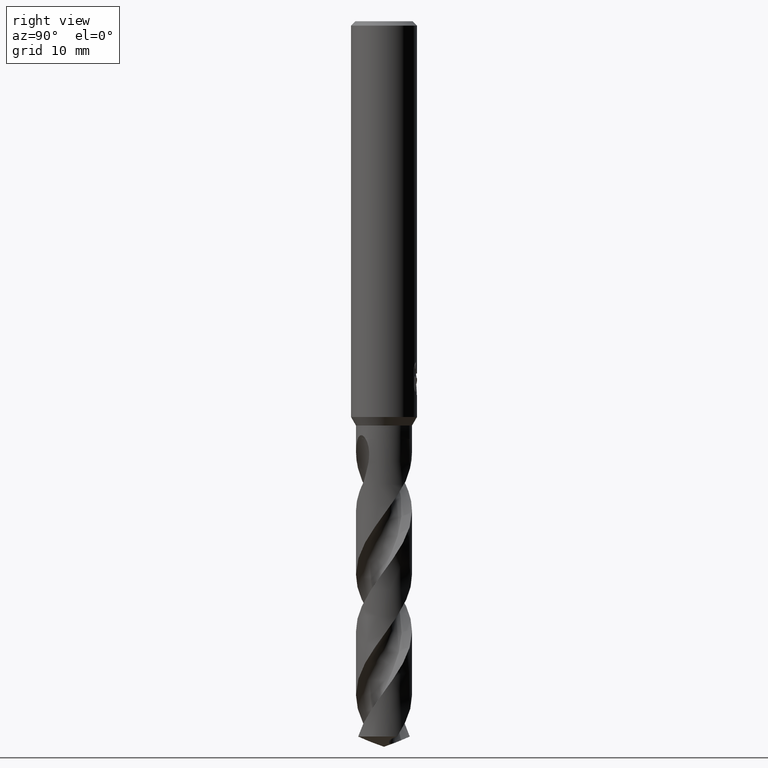
[diagram: clean part render]
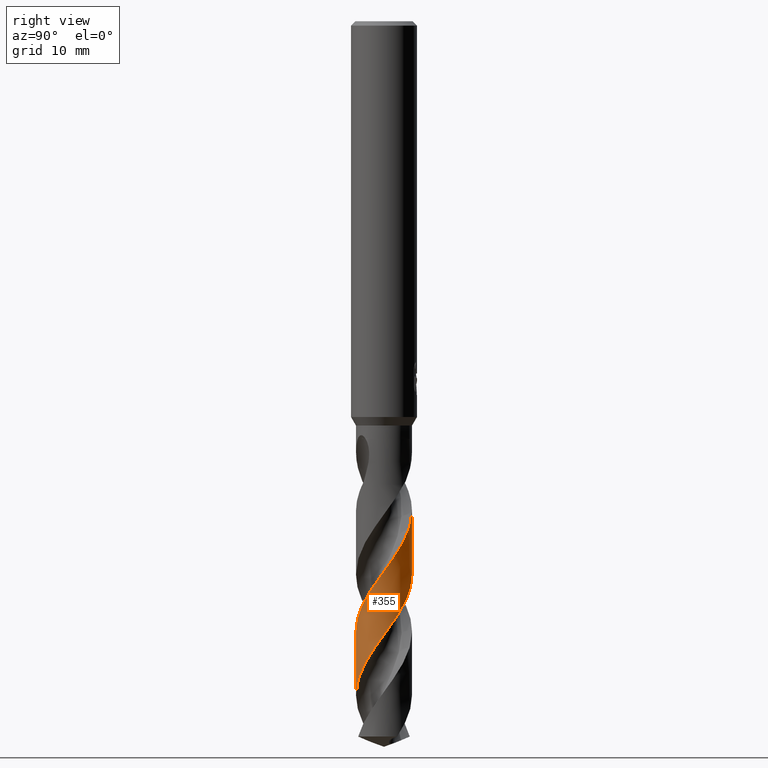
[diagram: same view with one face highlighted and labeled with its STEP entity id]
A machine part, right view. The second image highlights one B-rep face of the part: STEP entity #355.
In plain terms, the highlighted conical surface has half-angle 0 deg.
Its self-contained STEP definition (entity closure, byte-faithful):
#269=EDGE_CURVE('',#511,#531,#760,.T.);
#355=ADVANCED_FACE('',(#854),#855,.T.);
#361=EDGE_CURVE('',#511,#485,#861,.T.);
#403=VERTEX_POINT('',#910);
#439=EDGE_CURVE('',#403,#531,#948,.T.);
#485=VERTEX_POINT('',#998);
#511=VERTEX_POINT('',#1024);
#531=VERTEX_POINT('',#1046);
#723=EDGE_CURVE('',#403,#485,#1257,.T.);
#760=LINE('',#1288,#1289);
#854=FACE_OUTER_BOUND('',#2594,.T.);
#855=CONICAL_SURFACE('',#2595,2.54995,3.6938703604974E-006);
#861=B_SPLINE_CURVE_WITH_KNOTS('',3,(#2692,#2693,#2694,#2695,#2696,#2697,#2698,#2699,#2700,#2701,#2702,#2703,#2704,#2705,#2706,#2707,#2708,#2709,#2710,#2711,#2712,#2713,#2714,#2715,#2716,#2717,#2718,#2719,#2720,#2721,#2722,#2723,#2724,#2725,#2726,#2727,#2728,#2729,#2730,#2731,#2732,#2733,#2734,#2735,#2736,#2737,#2738,#2739,#2740,#2741,#2742,#2743,#2744,#2745,#2746,#2747,#2748,#2749,#2750,#2751,#2752,#2753,#2754,#2755,#2756,#2757,#2758,#2759,#2760,#2761,#2762,#2763,#2764,#2765,#2766,#2767,#2768,#2769,#2770,#2771,#2772,#2773,#2774,#2775,#2776,#2777,#2778,#2779,#2780,#2781,#2782,#2783),.UNSPECIFIED.,.F.,.F.,(4,2,2,2,2,2,2,2,2,2,2,2,2,2,2,2,2,2,2,2,2,2,2,2,2,2,2,2,2,2,2,2,2,2,2,2,2,2,2,2,2,2,2,2,2,4),(0.0,0.112800987693246,0.189332770349452,0.26669306414109,0.521928952150843,0.617981461177497,0.681587780178432,0.742909892075467,0.827642327643437,0.922896394616909,0.948256476099843,1.28742599590481,1.50723645601527,1.72434400446815,1.95258565555803,2.55882098851267,3.1544701386302,4.67218787072503,4.71613880577405,5.42517611464853,5.77723962375493,6.72997278068951,8.15885723951831,8.86966463164733,9.5776134045962,10.4981173923902,11.2152590646798,11.3202776453244,12.8658345770722,13.380541284696,14.8650843486738,15.0928766735549,16.6750908745567,17.1568216058061,18.6445636424028,18.8658256002692,20.4866655105165,20.7146435022412,22.2943556356154,22.7774363460983,24.2632115008534,24.4834163983339,26.1079905633559,26.4424814520502,27.6266933553116,28.8219099300584),.UNSPECIFIED.);
#910=CARTESIAN_POINT('',(-3.84394961872605E-015,-2.54998604599356,-61.2942645932158));
#948=B_SPLINE_CURVE_WITH_KNOTS('',3,(#3277,#3278,#3279,#3280,#3281,#3282,#3283,#3284,#3285,#3286,#3287,#3288,#3289,#3290,#3291,#3292,#3293,#3294,#3295,#3296,#3297,#3298,#3299,#3300,#3301,#3302,#3303,#3304,#3305,#3306,#3307,#3308,#3309,#3310,#3311,#3312,#3313,#3314,#3315,#3316,#3317,#3318,#3319,#3320,#3321,#3322,#3323,#3324,#3325,#3326,#3327,#3328,#3329,#3330,#3331,#3332,#3333,#3334,#3335,#3336,#3337,#3338,#3339,#3340,#3341,#3342,#3343,#3344,#3345,#3346,#3347,#3348,#3349,#3350,#3351,#3352,#3353,#3354,#3355,#3356,#3357,#3358,#3359,#3360,#3361,#3362),.UNSPECIFIED.,.F.,.F.,(4,2,2,2,2,2,2,2,2,2,2,2,2,2,2,2,2,2,2,2,2,2,2,2,2,2,2,2,2,2,2,2,2,2,2,2,2,2,2,2,2,2,4),(0.0,0.708341602315633,0.745354688200383,2.20868046409056,2.89285285606434,4.17978675190689,4.59125738094158,5.91144174928599,6.63504517655889,7.50214414971066,8.13386709198113,8.18535100094151,9.64283848777459,10.2393792749426,11.0920500131254,11.5333703362865,12.2816403904368,13.6821955925578,13.7332371413768,15.179990228832,15.7731452026742,16.6236279120914,17.0735099294114,17.8052459909179,18.5054915455352,19.9885407400108,20.6894370401919,21.3154174236301,22.1678159716106,22.5156287071623,23.0571509194279,25.499689609649,25.8019852434485,26.256859210237,26.7643922736913,27.1051937397403,27.4250253838798,27.6263273786623,27.7058076121835,27.7982187100312,27.9641050959177,28.1792937099632,28.3776958514326),.UNSPECIFIED.);
#998=CARTESIAN_POINT('',(2.26860393591309E-013,-2.54996469917166,-55.5152794618447));
#1024=CARTESIAN_POINT('',(-3.82520225535139E-013,2.54992419348605,-44.5496305192164));
#1046=CARTESIAN_POINT('',(-1.39261826665389E-014,2.5499455383361,-50.328081837779));
#1257=LINE('',#5177,#5178);
#1288=CARTESIAN_POINT('',(-3.18834868752122E-016,2.54995,-51.5359379513106));
#1289=VECTOR('',#5217,1.0);
#2594=EDGE_LOOP('',(#5312,#5313,#5314,#5315));
#2595=AXIS2_PLACEMENT_3D('',#5316,#5317,#5318);
#2692=CARTESIAN_POINT('',(-1.77238658809862,1.83322353206436,-41.8606));
#2693=CARTESIAN_POINT('',(-1.75715502662711,1.84794978196327,-41.8916631913579));
#2694=CARTESIAN_POINT('',(-1.74169664883046,1.86252882649492,-41.922687804189));
#2695=CARTESIAN_POINT('',(-1.71528602902655,1.88681452765369,-41.9746864005262));
#2696=CARTESIAN_POINT('',(-1.70449844485085,1.8965663399012,-41.9956551769255));
#2697=CARTESIAN_POINT('',(-1.68253091793457,1.9160829790141,-42.0377742461096));
#2698=CARTESIAN_POINT('',(-1.6713691745389,1.92582800346438,-42.0588834940554));
#2699=CARTESIAN_POINT('',(-1.62275158308509,1.9675267356306,-42.1495360325029));
#2700=CARTESIAN_POINT('',(-1.58448769963045,1.99850103432359,-42.2176190264733));
#2701=CARTESIAN_POINT('',(-1.5293127277487,2.04049829287648,-42.3117970257963));
#2702=CARTESIAN_POINT('',(-1.51405569331539,2.0518459238094,-42.3374507917192));
#2703=CARTESIAN_POINT('',(-1.4883760118751,2.07049976079212,-42.3800712702503));
#2704=CARTESIAN_POINT('',(-1.47807525449818,2.07786605502114,-42.397022142935));
#2705=CARTESIAN_POINT('',(-1.45769861025118,2.09220884143894,-42.430305257843));
#2706=CARTESIAN_POINT('',(-1.44763717832061,2.09918330783959,-42.4466227676747));
#2707=CARTESIAN_POINT('',(-1.42352923991712,2.11563837925455,-42.4854874189889));
#2708=CARTESIAN_POINT('',(-1.40944566530356,2.12504699822035,-42.508005603724));
#2709=CARTESIAN_POINT('',(-1.37933061019754,2.14473435929471,-42.5558781111915));
#2710=CARTESIAN_POINT('',(-1.36330095189831,2.15495872383249,-42.5811952549917));
#2711=CARTESIAN_POINT('',(-1.34289483816398,2.16765677788349,-42.6133239933595));
#2712=CARTESIAN_POINT('',(-1.33863924930028,2.17028743407427,-42.6200200865094));
#2713=CARTESIAN_POINT('',(-1.27673139878675,2.20830360688199,-42.7174202288303));
#2714=CARTESIAN_POINT('',(-1.21815056464275,2.24111984101955,-42.8092147272944));
#2715=CARTESIAN_POINT('',(-1.12045858883321,2.29096398026588,-42.960115295281));
#2716=CARTESIAN_POINT('',(-1.08158795552068,2.30956819469769,-43.0196167261728));
#2717=CARTESIAN_POINT('',(-1.00349526346895,2.34454514515311,-43.1377425881658));
#2718=CARTESIAN_POINT('',(-0.964207424834067,2.36097653088092,-43.1964845562783));
#2719=CARTESIAN_POINT('',(-0.882690147445782,2.39268840025771,-43.3167468825109));
#2720=CARTESIAN_POINT('',(-0.840639093009305,2.40778519999716,-43.3778389597187));
#2721=CARTESIAN_POINT('',(-0.684868630286934,2.45911516310556,-43.6018435372923));
#2722=CARTESIAN_POINT('',(-0.569246391967033,2.48842249692214,-43.7638114275623));
#2723=CARTESIAN_POINT('',(-0.336828274889075,2.5302864545139,-44.0865041702941));
#2724=CARTESIAN_POINT('',(-0.220558860332089,2.54304255438227,-44.2468889489162));
#2725=CARTESIAN_POINT('',(0.192921814564404,2.55992597553261,-44.8146995910369));
#2726=CARTESIAN_POINT('',(0.489833898555408,2.52005917878731,-45.2173025907779));
#2727=CARTESIAN_POINT('',(0.781537928820186,2.42722198376911,-45.6365796141047));
#2728=CARTESIAN_POINT('',(0.789734236586711,2.42456762148691,-45.6483799978421));
#2729=CARTESIAN_POINT('',(0.92992453778802,2.37838090075855,-45.8505479330746));
#2730=CARTESIAN_POINT('',(1.05820099933306,2.32415495165254,-46.0405826185204));
#2731=CARTESIAN_POINT('',(1.24265512421942,2.22771729924607,-46.3253704400895));
#2732=CARTESIAN_POINT('',(1.30250541335167,2.19326064638787,-46.4197521548013));
#2733=CARTESIAN_POINT('',(1.51883431070945,2.05674140333622,-46.7701154763031));
#2734=CARTESIAN_POINT('',(1.66543785531467,1.93995353377816,-47.0256432364579));
#2735=CARTESIAN_POINT('',(1.99678819006712,1.61046791505491,-47.6650115130957));
#2736=CARTESIAN_POINT('',(2.16152973260956,1.38144501704338,-48.0455713272319));
#2737=CARTESIAN_POINT('',(2.34743448043975,1.00555851184106,-48.6203381277687));
#2738=CARTESIAN_POINT('',(2.39889977676179,0.875749083242066,-48.8108875299069));
#2739=CARTESIAN_POINT('',(2.47995959493312,0.609350429230094,-49.1916956742985));
#2740=CARTESIAN_POINT('',(2.50945286182512,0.473415588396909,-49.3810528074834));
#2741=CARTESIAN_POINT('',(2.55150635827195,0.156872530720871,-49.8184389967694));
#2742=CARTESIAN_POINT('',(2.55622010772526,-0.0241559011656032,-50.0654396494221));
#2743=CARTESIAN_POINT('',(2.53048670703743,-0.34447945812411,-50.5052153519442));
#2744=CARTESIAN_POINT('',(2.50762380866348,-0.483600381513505,-50.6972170261242));
#2745=CARTESIAN_POINT('',(2.46837477873936,-0.640143960836402,-50.9179440349129));
#2746=CARTESIAN_POINT('',(2.4631208351618,-0.660071437924707,-50.9461341589438));
#2747=CARTESIAN_POINT('',(2.37676003089924,-0.972229913642161,-51.3894434189122));
#2748=CARTESIAN_POINT('',(2.24429497725322,-1.24802464254054,-51.802563057248));
#2749=CARTESIAN_POINT('',(2.0071698240305,-1.57599252123576,-52.3558646949553));
#2750=CARTESIAN_POINT('',(1.94315608651471,-1.65426841989885,-52.4938945662643));
#2751=CARTESIAN_POINT('',(1.67728575005458,-1.94262956574846,-53.0312913062015));
#2752=CARTESIAN_POINT('',(1.44445609098318,-2.12152968374307,-53.4275910072428));
#2753=CARTESIAN_POINT('',(1.14667340842621,-2.27803251286587,-53.8875546489806));
#2754=CARTESIAN_POINT('',(1.10653615199116,-2.29779645822568,-53.9487094618539));
#2755=CARTESIAN_POINT('',(0.783692560666904,-2.44635098778922,-54.4351918517393));
#2756=CARTESIAN_POINT('',(0.479846923843472,-2.52364308324773,-54.8580432564531));
#2757=CARTESIAN_POINT('',(0.0750580291734802,-2.55061761702661,-55.4126896810726));
#2758=CARTESIAN_POINT('',(-0.0196233446092499,-2.55164199497897,-55.5420212704073));
#2759=CARTESIAN_POINT('',(-0.405825956985389,-2.53434753401846,-56.0717459812721));
#2760=CARTESIAN_POINT('',(-0.693402373619292,-2.47124442682279,-56.4689752565297));
#2761=CARTESIAN_POINT('',(-1.00439254898438,-2.34423414648466,-56.9283088953738));
#2762=CARTESIAN_POINT('',(-1.04420827271536,-2.32677154652363,-56.9877510836984));
#2763=CARTESIAN_POINT('',(-1.37176478564797,-2.17301359135874,-57.4831693039979));
#2764=CARTESIAN_POINT('',(-1.63234830124939,-1.98479160798729,-57.9161853402864));
#2765=CARTESIAN_POINT('',(-1.88233941874796,-1.72080875184623,-58.4132873107143));
#2766=CARTESIAN_POINT('',(-1.91228840082851,-1.68746446180307,-58.4745503597088));
#2767=CARTESIAN_POINT('',(-2.14264120082039,-1.41699090481956,-58.960874012314));
#2768=CARTESIAN_POINT('',(-2.29925253213112,-1.14561310355228,-59.3834799741324));
#2769=CARTESIAN_POINT('',(-2.43496825761625,-0.76312931656906,-59.938353707509));
#2770=CARTESIAN_POINT('',(-2.4616941334589,-0.671920185378062,-60.0681717454833));
#2771=CARTESIAN_POINT('',(-2.54960636767631,-0.295200789004756,-60.5982409827345));
#2772=CARTESIAN_POINT('',(-2.56668736938745,-0.00138079486259574,-60.9953217472241));
#2773=CARTESIAN_POINT('',(-2.52863666531793,0.332123056919176,-61.4542743187523));
#2774=CARTESIAN_POINT('',(-2.52263161001213,0.375016682521567,-61.5134867634412));
#2775=CARTESIAN_POINT('',(-2.46321081158312,0.732854961300559,-62.010101542126));
#2776=CARTESIAN_POINT('',(-2.35206029221698,1.03562212383164,-62.4446063083281));
#2777=CARTESIAN_POINT('',(-2.15397128954074,1.3664562829912,-62.9718978281086));
#2778=CARTESIAN_POINT('',(-2.11799444811077,1.4215794295799,-63.0618832469597));
#2779=CARTESIAN_POINT('',(-1.94522347803872,1.66517353783052,-63.4709106220507));
#2780=CARTESIAN_POINT('',(-1.78500415179579,1.83592441864692,-63.7887878881136));
#2781=CARTESIAN_POINT('',(-1.42070076141683,2.13060909944261,-64.4292615016959));
#2782=CARTESIAN_POINT('',(-1.21831665909281,2.25240051372047,-64.7497060980878));
#2783=CARTESIAN_POINT('',(-1.00246377886125,2.34468897128622,-65.0718759026212));
#3277=CARTESIAN_POINT('',(-2.25080379143291,-1.19849167392654,-65.0718759026212));
#3278=CARTESIAN_POINT('',(-2.18510297014613,-1.32187831773242,-64.8815895483828));
#3279=CARTESIAN_POINT('',(-2.10970277576798,-1.43902904554262,-64.6918701428737));
#3280=CARTESIAN_POINT('',(-2.02123229989125,-1.55472227291493,-64.4905403742505));
#3281=CARTESIAN_POINT('',(-2.01679081666905,-1.56047984732925,-64.4804895226848));
#3282=CARTESIAN_POINT('',(-1.8343505294425,-1.79487157162534,-64.0701373150177));
#3283=CARTESIAN_POINT('',(-1.61846355525164,-1.99193864680611,-63.6790411214308));
#3284=CARTESIAN_POINT('',(-1.25842010531978,-2.22201986512964,-63.0944556802455));
#3285=CARTESIAN_POINT('',(-1.13825927218761,-2.28588837555523,-62.9071227726554));
#3286=CARTESIAN_POINT('',(-0.779067779590851,-2.44147900121185,-62.3705743745927));
#3287=CARTESIAN_POINT('',(-0.530785052116859,-2.50717086312352,-62.0261866168001));
#3288=CARTESIAN_POINT('',(-0.195805431492565,-2.54376864582025,-61.564044867196));
#3289=CARTESIAN_POINT('',(-0.114474147333359,-2.54871475598237,-61.4516402357787));
#3290=CARTESIAN_POINT('',(0.227896472767353,-2.55316035063651,-60.9808882993341));
#3291=CARTESIAN_POINT('',(0.488083497333805,-2.51647485583169,-60.6285099632571));
#3292=CARTESIAN_POINT('',(0.87576938213406,-2.39916635875573,-60.0742857555063));
#3293=CARTESIAN_POINT('',(1.00900183675831,-2.34623287161168,-59.8768026514452));
#3294=CARTESIAN_POINT('',(1.29066242489317,-2.20590315338705,-59.4454482299027));
#3295=CARTESIAN_POINT('',(1.43627125461818,-2.11402400352217,-59.2122324277177));
#3296=CARTESIAN_POINT('',(1.67038686401345,-1.93077492355165,-58.8065407466412));
#3297=CARTESIAN_POINT('',(1.76290254233631,-1.84663131231763,-58.63602003391));
#3298=CARTESIAN_POINT('',(1.85562562039151,-1.74903737111469,-58.4504224447158));
#3299=CARTESIAN_POINT('',(1.86259684028373,-1.74161214872564,-58.4363835380792));
#3300=CARTESIAN_POINT('',(2.06671014513539,-1.52155260306626,-58.0228913732095));
#3301=CARTESIAN_POINT('',(2.22639029321903,-1.27675468690815,-57.6322580022302));
#3302=CARTESIAN_POINT('',(2.38866205137972,-0.9004487242537,-57.0713070830414));
#3303=CARTESIAN_POINT('',(2.4279748226148,-0.788261011532186,-56.9074764263027));
#3304=CARTESIAN_POINT('',(2.50412626004407,-0.510331590740688,-56.5118447851245));
#3305=CARTESIAN_POINT('',(2.53259611629711,-0.342448524978212,-56.2809376938767));
#3306=CARTESIAN_POINT('',(2.55008179947536,-0.0846979045504142,-55.9285891431603));
#3307=CARTESIAN_POINT('',(2.55147674145802,0.00333472607913374,-55.8085936276316));
#3308=CARTESIAN_POINT('',(2.54301122122916,0.240009376401789,-55.484181004054));
#3309=CARTESIAN_POINT('',(2.52467551827187,0.388014849409902,-55.2787812543403));
#3310=CARTESIAN_POINT('',(2.43505021329,0.806661093196625,-54.692682566376));
#3311=CARTESIAN_POINT('',(2.33236557613172,1.06744939846259,-54.3181298715346));
#3312=CARTESIAN_POINT('',(2.18499856729007,1.31460015781218,-53.9213848531759));
#3313=CARTESIAN_POINT('',(2.17973805636793,1.32330506339226,-53.9073669001962));
#3314=CARTESIAN_POINT('',(2.0229562274645,1.57923223453986,-53.4939103845013));
#3315=CARTESIAN_POINT('',(1.83035616785413,1.79906057200144,-53.1032903762835));
#3316=CARTESIAN_POINT('',(1.5116856443538,2.05700810551191,-52.5420717237663));
#3317=CARTESIAN_POINT('',(1.41410550383006,2.12524992873737,-52.3779633322934));
#3318=CARTESIAN_POINT('',(1.166124659065,2.27407938850555,-51.980929532214));
#3319=CARTESIAN_POINT('',(1.01135249542506,2.34705705230857,-51.7489251968907));
#3320=CARTESIAN_POINT('',(0.764766898674813,2.43424765560917,-51.3922070483517));
#3321=CARTESIAN_POINT('',(0.678040844160028,2.45980458611549,-51.2689824342829));
#3322=CARTESIAN_POINT('',(0.447536681417132,2.51465188179756,-50.9443104394202));
#3323=CARTESIAN_POINT('',(0.302180456838972,2.53623752541866,-50.7419258793903));
#3324=CARTESIAN_POINT('',(0.0152099117338023,2.55377315024994,-50.3483672548008));
#3325=CARTESIAN_POINT('',(-0.1257216527468,2.55073736482625,-50.1569876745545));
#3326=CARTESIAN_POINT('',(-0.562586717931691,2.50494153375254,-49.5577366808622));
#3327=CARTESIAN_POINT('',(-0.851434994536774,2.42204166179561,-49.1488295452442));
#3328=CARTESIAN_POINT('',(-1.24621051780205,2.22913275041139,-48.5493852331588));
#3329=CARTESIAN_POINT('',(-1.36739536164702,2.15689553585337,-48.3579398197636));
#3330=CARTESIAN_POINT('',(-1.58408883090951,2.00215410005524,-47.9932745079302));
#3331=CARTESIAN_POINT('',(-1.68055444573877,1.92187974899194,-47.8201981118849));
#3332=CARTESIAN_POINT('',(-1.89355472007323,1.71631811442131,-47.4139664140191));
#3333=CARTESIAN_POINT('',(-2.0043838933027,1.58555148014887,-47.1816195262402));
#3334=CARTESIAN_POINT('',(-2.14105164645958,1.38670251021474,-46.8526704714192));
#3335=CARTESIAN_POINT('',(-2.17823345459781,1.32752593955717,-46.7574255849381));
#3336=CARTESIAN_POINT('',(-2.26690079275941,1.1726546894111,-46.5134384023233));
#3337=CARTESIAN_POINT('',(-2.31469515333938,1.07519985310533,-46.3642504300947));
#3338=CARTESIAN_POINT('',(-2.54284239104172,0.523966011383729,-45.54563390245));
#3339=CARTESIAN_POINT('',(-2.59540318828178,0.0300543956457526,-44.8985251666046));
#3340=CARTESIAN_POINT('',(-2.49990180178217,-0.506156932026548,-44.147679626819));
#3341=CARTESIAN_POINT('',(-2.48734963444535,-0.564627729322264,-44.0647200370539));
#3342=CARTESIAN_POINT('',(-2.45059563121024,-0.710529138318172,-43.8574726750054));
#3343=CARTESIAN_POINT('',(-2.4237269657843,-0.797526273876131,-43.7332750994972));
#3344=CARTESIAN_POINT('',(-2.35652755141249,-0.979454751128763,-43.4717633655581));
#3345=CARTESIAN_POINT('',(-2.3168311065665,-1.06971538134532,-43.3426940558821));
#3346=CARTESIAN_POINT('',(-2.24125261467341,-1.21792447266369,-43.1181890735303));
#3347=CARTESIAN_POINT('',(-2.20906043433154,-1.27526479953242,-43.0277858930986));
#3348=CARTESIAN_POINT('',(-2.14380388365212,-1.3819744037635,-42.8498395440032));
#3349=CARTESIAN_POINT('',(-2.11117229214742,-1.4312013669379,-42.7631475278552));
#3350=CARTESIAN_POINT('',(-2.05686589294951,-1.50754416349463,-42.6193414687084));
#3351=CARTESIAN_POINT('',(-2.03999070219889,-1.53048964704276,-42.5735328085592));
#3352=CARTESIAN_POINT('',(-2.00283367022611,-1.57829831244678,-42.4852204226616));
#3353=CARTESIAN_POINT('',(-1.99201078075001,-1.5919425324489,-42.4604408756043));
#3354=CARTESIAN_POINT('',(-1.96788052056535,-1.62171011400887,-42.4072613224573));
#3355=CARTESIAN_POINT('',(-1.95447892835141,-1.63784667243903,-42.378980076219));
#3356=CARTESIAN_POINT('',(-1.91571339518458,-1.68332592195973,-42.3006903259724));
#3357=CARTESIAN_POINT('',(-1.88941084243116,-1.71285186430066,-42.2514875359826));
#3358=CARTESIAN_POINT('',(-1.82535533871302,-1.78127685173432,-42.1404897644192));
#3359=CARTESIAN_POINT('',(-1.78674570867411,-1.82011404755788,-42.0796884472352));
#3360=CARTESIAN_POINT('',(-1.70738012673875,-1.89463592104357,-41.9656817730142));
#3361=CARTESIAN_POINT('',(-1.6672246066624,-1.93014135512339,-41.912538580568));
#3362=CARTESIAN_POINT('',(-1.62487355447808,-1.96515868777668,-41.8606));
#5177=CARTESIAN_POINT('',(3.05702125633752E-016,-2.54995,-51.5359379513106));
#5178=VECTOR('',#5763,1.0);
#5217=DIRECTION('',(-4.52353711365098E-022,3.693870360489E-006,-0.999999999993178));
#5312=ORIENTED_EDGE('',*,*,#269,.F.);
#5313=ORIENTED_EDGE('',*,*,#361,.T.);
#5314=ORIENTED_EDGE('',*,*,#723,.F.);
#5315=ORIENTED_EDGE('',*,*,#439,.T.);
#5316=CARTESIAN_POINT('',(0.0,0.0,-51.5359379513106));
#5317=DIRECTION('',(0.0,-0.0,-1.0));
#5318=DIRECTION('',(0.0,1.0,0.0));
#5763=DIRECTION('',(-4.52353711365098E-022,3.693870360489E-006,0.999999999993178));